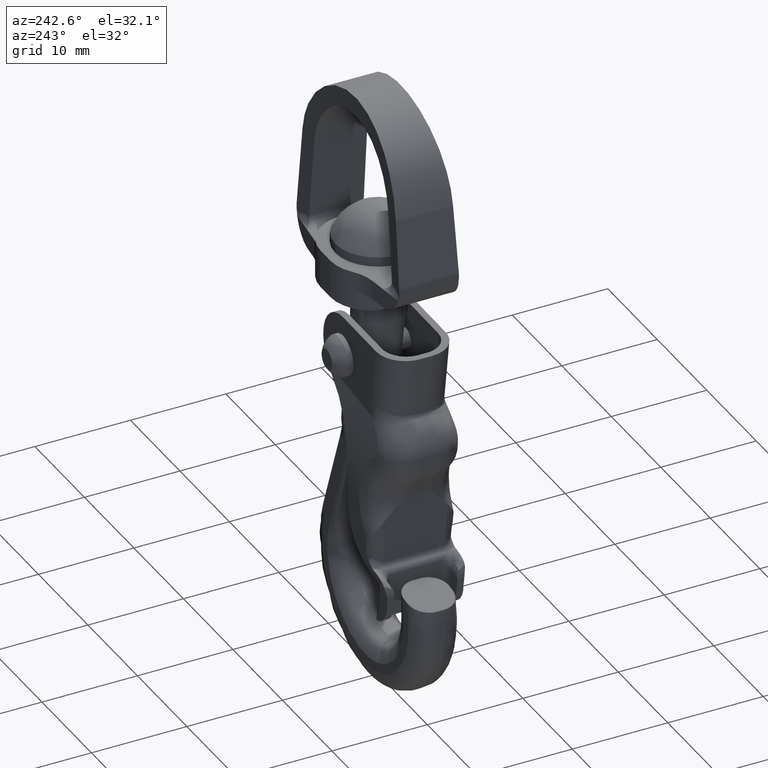
[diagram: clean part render]
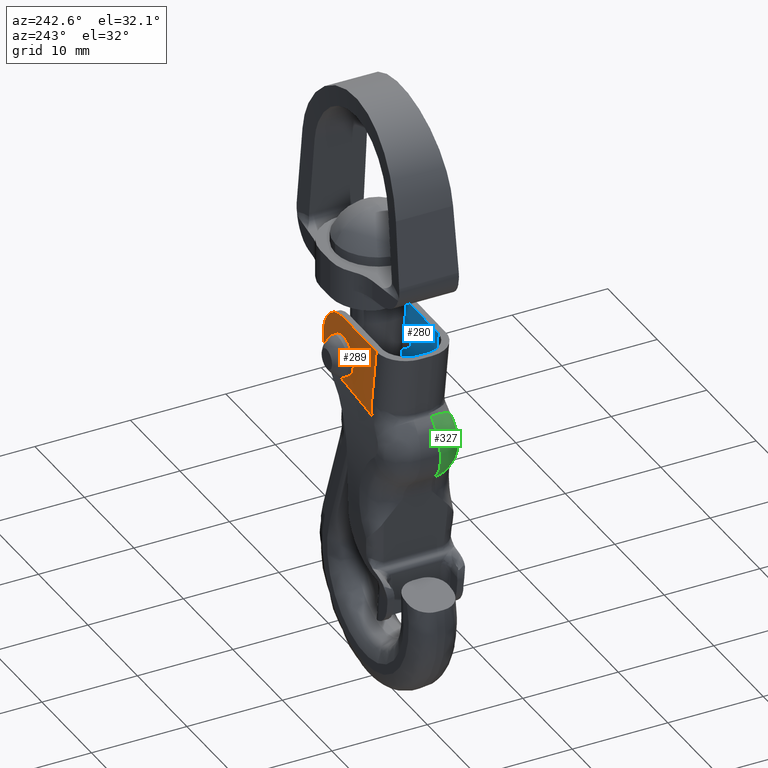
[diagram: same view with three faces highlighted in distinct colors, each labeled with its STEP entity id]
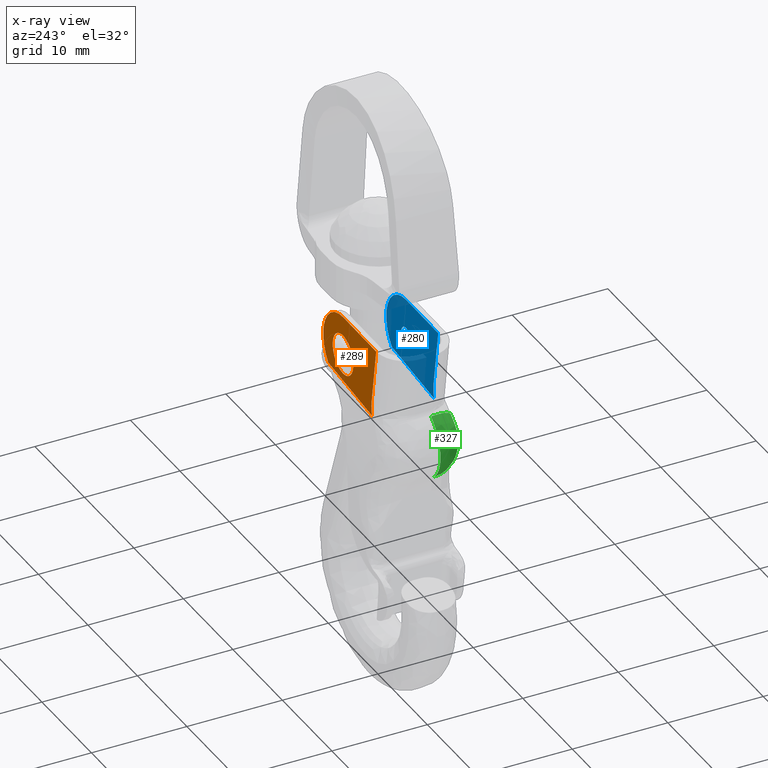
[diagram: x-ray of the same camera — body ghosted, the three highlighted faces saturated]
A machine part, auxiliary view with three faces highlighted in distinct colors.
The next image is the same camera in x-ray (body ghosted, the three faces saturated) — at least one of them is partly hidden behind the body in this view.
Their STEP definitions:

[orange] entity #289 — the highlighted planar face has unit normal (-0, 1, 0).
#289=ADVANCED_FACE('',(#1757,#1758),#1756,.T.);
#1756=PLANE('',#4382);
#1757=FACE_OUTER_BOUND('',#4383,.T.);
#1758=FACE_BOUND('',#4384,.T.);
#4379=CARTESIAN_POINT('',(-7.32479059983E+00,3.65000000000E+00,-3.59659012756E+00));
#4380=DIRECTION('',(-0.00000000000E+00,1.00000000000E+00,2.45964074850E-13));
#4381=DIRECTION('',(0.00000000000E+00,-2.45964074850E-13,1.00000000000E+00));
#4382=AXIS2_PLACEMENT_3D('',#4379,#4380,#4381);
#4383=EDGE_LOOP('',(#6299,#6300,#6301,#6302,#6303));
#4384=EDGE_LOOP('',(#6304,#6305,#6306));
#6299=ORIENTED_EDGE('',*,*,#7071,.F.);
#6300=ORIENTED_EDGE('',*,*,#7072,.T.);
#6301=ORIENTED_EDGE('',*,*,#7073,.T.);
#6302=ORIENTED_EDGE('',*,*,#7074,.F.);
#6303=ORIENTED_EDGE('',*,*,#7010,.T.);
#6304=ORIENTED_EDGE('',*,*,#7075,.F.);
#6305=ORIENTED_EDGE('',*,*,#7076,.F.);
#6306=ORIENTED_EDGE('',*,*,#7077,.F.);
#7010=EDGE_CURVE('',#9742,#9735,#9743,.T.);
#7071=EDGE_CURVE('',#10146,#9735,#10147,.T.);
#7072=EDGE_CURVE('',#10146,#10153,#10154,.T.);
#7073=EDGE_CURVE('',#10153,#10160,#10161,.T.);
#7074=EDGE_CURVE('',#9742,#10160,#10167,.T.);
#7075=EDGE_CURVE('',#10173,#10174,#10175,.T.);
#7076=EDGE_CURVE('',#10181,#10173,#10182,.T.);
#7077=EDGE_CURVE('',#10174,#10181,#10188,.T.);
#9735=VERTEX_POINT('',#13096);
#9742=VERTEX_POINT('',#13103);
#9743=CIRCLE('',#13107,4.00000000000E+00);
#10146=VERTEX_POINT('',#13465);
#10147=LINE('',#13466,#13467);
#10153=VERTEX_POINT('',#13469);
#10154=(BOUNDED_CURVE() B_SPLINE_CURVE(2,(#13470,#13471,#13472),.UNSPECIFIED.,.F.,.F.) B_SPLINE_CURVE_WITH_KNOTS((3,3),(0.00000000000E+00,1.00000000000E+00),.UNSPECIFIED.) CURVE() GEOMETRIC_REPRESENTATION_ITEM() RATIONAL_B_SPLINE_CURVE((1.00000000000E+00,1.00000000000E+00,1.00000000000E+00)) REPRESENTATION_ITEM('') );
#10160=VERTEX_POINT('',#13473);
#10161=LINE('',#13474,#13475);
#10167=LINE('',#13477,#13478);
#10173=VERTEX_POINT('',#13480);
#10174=VERTEX_POINT('',#13481);
#10175=CIRCLE('',#13485,2.08506594620E+00);
#10181=VERTEX_POINT('',#13486);
#10182=CIRCLE('',#13490,2.08506594620E+00);
#10188=CIRCLE('',#13494,2.08506594620E+00);
#13096=CARTESIAN_POINT('',(2.72282086688E+00,3.65000000000E+00,-2.83971034719E+00));
#13103=CARTESIAN_POINT('',(3.98721437456E-01,3.65000000000E+00,4.08056628611E+00));
#13104=CARTESIAN_POINT('',(9.72491310870E-03,3.65000000000E+00,9.95260069793E-02));
#13105=DIRECTION('',(0.00000000000E+00,1.00000000000E+00,2.45964074850E-13));
#13106=DIRECTION('',(-0.00000000000E+00,2.45964074850E-13,-1.00000000000E+00));
#13107=AXIS2_PLACEMENT_3D('',#13104,#13105,#13106);
#13465=CARTESIAN_POINT('',(-6.18553665017E+00,3.65000000000E+00,-2.83971034719E+00));
#13466=CARTESIAN_POINT('',(-6.18553665017E+00,3.65000000000E+00,-2.83971034719E+00));
#13467=VECTOR('',#13468,8.90835751704E+00);
#13468=DIRECTION('',(1.00000000000E+00,0.00000000000E+00,0.00000000000E+00));
#13469=CARTESIAN_POINT('',(-5.95439477423E+00,3.65000000000E+00,-1.36964851041E+00));
#13470=CARTESIAN_POINT('',(-6.18553665017E+00,3.65000000000E+00,-2.83971034719E+00));
#13471=CARTESIAN_POINT('',(-5.91907012449E+00,3.65000000000E+00,-2.12840515811E+00));
#13472=CARTESIAN_POINT('',(-5.95439477423E+00,3.65000000000E+00,-1.36964851041E+00));
#13473=CARTESIAN_POINT('',(-6.23832732700E+00,3.65000000000E+00,4.72908745652E+00));
#13474=CARTESIAN_POINT('',(-5.95439477423E+00,3.65000000000E+00,-1.36964851041E+00));
#13475=VECTOR('',#13476,6.10534176675E+00);
#13476=DIRECTION('',(-4.65055952010E-02,-2.45635595673E-13,9.98918029477E-01));
#13477=CARTESIAN_POINT('',(3.98721437456E-01,3.65000000000E+00,4.08056628611E+00));
#13478=VECTOR('',#13479,6.66865773677E+00);
#13479=DIRECTION('',(-9.95260069782E-01,-2.39070638544E-14,9.72491310867E-02));
#13480=CARTESIAN_POINT('',(-2.08506594620E+00,3.65000000000E+00,1.25526639351E-11));
#13481=CARTESIAN_POINT('',(1.70530256582E-13,3.65000000000E+00,2.08506594620E+00));
#13482=CARTESIAN_POINT('',(1.70530256582E-13,3.65000000000E+00,-6.14910187124E-14));
#13483=DIRECTION('',(1.12103877146E-44,1.00000000000E+00,2.45964074850E-13));
#13484=DIRECTION('',(-1.22460635382E-16,-2.45964074850E-13,1.00000000000E+00));
#13485=AXIS2_PLACEMENT_3D('',#13482,#13483,#13484);
#13486=CARTESIAN_POINT('',(2.08506593497E+00,3.65000000000E+00,-2.16387609521E-04));
#13487=CARTESIAN_POINT('',(1.70530256582E-13,3.65000000000E+00,-6.14910187124E-14));
#13488=DIRECTION('',(1.12103877146E-44,1.00000000000E+00,2.45964074850E-13));
#13489=DIRECTION('',(-1.22460635382E-16,-2.45964074850E-13,1.00000000000E+00));
#13490=AXIS2_PLACEMENT_3D('',#13487,#13488,#13489);
#13491=CARTESIAN_POINT('',(1.70530256582E-13,3.65000000000E+00,-6.14910187124E-14));
#13492=DIRECTION('',(1.12103877146E-44,1.00000000000E+00,2.45964074850E-13));
#13493=DIRECTION('',(-1.22460635382E-16,-2.45964074850E-13,1.00000000000E+00));
#13494=AXIS2_PLACEMENT_3D('',#13491,#13492,#13493);

[blue] entity #280 — the highlighted planar face has unit normal (0, 1, -0).
#280=ADVANCED_FACE('',(#1665,#1666),#1664,.T.);
#1664=PLANE('',#4215);
#1665=FACE_OUTER_BOUND('',#4216,.T.);
#1666=FACE_BOUND('',#4217,.T.);
#4212=CARTESIAN_POINT('',(-7.10266216644E+00,-2.95000000000E+00,-3.72765579224E+00));
#4213=DIRECTION('',(0.00000000000E+00,1.00000000000E+00,-2.34912969603E-13));
#4214=DIRECTION('',(0.00000000000E+00,2.34912969603E-13,1.00000000000E+00));
#4215=AXIS2_PLACEMENT_3D('',#4212,#4213,#4214);
#4216=EDGE_LOOP('',(#6252,#6253,#6254,#6255,#6256));
#4217=EDGE_LOOP('',(#6257,#6258));
#6252=ORIENTED_EDGE('',*,*,#7034,.F.);
#6253=ORIENTED_EDGE('',*,*,#7001,.T.);
#6254=ORIENTED_EDGE('',*,*,#7035,.T.);
#6255=ORIENTED_EDGE('',*,*,#7036,.F.);
#6256=ORIENTED_EDGE('',*,*,#7037,.T.);
#6257=ORIENTED_EDGE('',*,*,#7038,.F.);
#6258=ORIENTED_EDGE('',*,*,#7039,.F.);
#7001=EDGE_CURVE('',#9680,#9681,#9682,.T.);
#7034=EDGE_CURVE('',#9680,#9898,#9899,.T.);
#7035=EDGE_CURVE('',#9681,#9905,#9906,.T.);
#7036=EDGE_CURVE('',#9912,#9905,#9913,.T.);
#7037=EDGE_CURVE('',#9912,#9898,#9919,.T.);
#7038=EDGE_CURVE('',#9925,#9926,#9927,.T.);
#7039=EDGE_CURVE('',#9926,#9925,#9933,.T.);
#9680=VERTEX_POINT('',#13042);
#9681=VERTEX_POINT('',#13043);
#9682=CIRCLE('',#13047,3.90000000000E+00);
#9898=VERTEX_POINT('',#13213);
#9899=LINE('',#13214,#13215);
#9905=VERTEX_POINT('',#13217);
#9906=LINE('',#13218,#13219);
#9912=VERTEX_POINT('',#13221);
#9913=LINE('',#13222,#13223);
#9919=CIRCLE('',#13228,4.00000000000E+00);
#9925=VERTEX_POINT('',#13229);
#9926=VERTEX_POINT('',#13230);
#9927=CIRCLE('',#13234,1.00000000000E+00);
#9933=CIRCLE('',#13238,1.00000000000E+00);
#13042=CARTESIAN_POINT('',(-6.01767318163E+00,-2.95000000000E+00,-2.96064759024E+00));
#13043=CARTESIAN_POINT('',(-5.75461116834E+00,-2.95000000000E+00,-1.36034739137E+00));
#13044=CARTESIAN_POINT('',(-9.65039148330E+00,-2.95000000000E+00,-1.54171921265E+00));
#13045=DIRECTION('',(0.00000000000E+00,-1.00000000000E+00,2.34912969603E-13));
#13046=DIRECTION('',(-0.00000000000E+00,-2.34912969603E-13,-1.00000000000E+00));
#13047=AXIS2_PLACEMENT_3D('',#13044,#13045,#13046);
#13213=CARTESIAN_POINT('',(2.58563980978E+00,-2.95000000000E+00,-2.96064759024E+00));
#13214=CARTESIAN_POINT('',(-6.01767318163E+00,-2.95000000000E+00,-2.96064759024E+00));
#13215=VECTOR('',#13216,8.60331299141E+00);
#13216=DIRECTION('',(1.00000000000E+00,0.00000000000E+00,0.00000000000E+00));
#13217=CARTESIAN_POINT('',(-6.03719573284E+00,-2.95000000000E+00,4.70943442978E+00));
#13218=CARTESIAN_POINT('',(-5.75461116834E+00,-2.95000000000E+00,-1.36034739137E+00));
#13219=VECTOR('',#13220,6.07635625951E+00);
#13220=DIRECTION('',(-4.65055952010E-02,2.34602169909E-13,9.98918029477E-01));
#13221=CARTESIAN_POINT('',(3.98721437456E-01,-2.95000000000E+00,4.08056628611E+00));
#13222=CARTESIAN_POINT('',(3.98721437456E-01,-2.95000000000E+00,4.08056628611E+00));
#13223=VECTOR('',#13224,6.46656825256E+00);
#13224=DIRECTION('',(-9.95260069782E-01,2.27999785840E-14,9.72491310867E-02));
#13225=CARTESIAN_POINT('',(9.72491310870E-03,-2.95000000000E+00,9.95260069793E-02));
#13226=DIRECTION('',(0.00000000000E+00,1.00000000000E+00,-2.34912969603E-13));
#13227=DIRECTION('',(-0.00000000000E+00,-2.34912969603E-13,-1.00000000000E+00));
#13228=AXIS2_PLACEMENT_3D('',#13225,#13226,#13227);
#13229=CARTESIAN_POINT('',(1.11022302463E-16,-2.95000000000E+00,-1.00000000000E+00));
#13230=CARTESIAN_POINT('',(0.00000000000E+00,-2.95000000000E+00,1.00000000000E+00));
#13231=CARTESIAN_POINT('',(0.00000000000E+00,-2.95000000000E+00,-4.44089209850E-16));
#13232=DIRECTION('',(0.00000000000E+00,1.00000000000E+00,-2.34912969603E-13));
#13233=DIRECTION('',(-1.22460635382E-16,2.34912969603E-13,1.00000000000E+00));
#13234=AXIS2_PLACEMENT_3D('',#13231,#13232,#13233);
#13235=CARTESIAN_POINT('',(0.00000000000E+00,-2.95000000000E+00,-4.44089209850E-16));
#13236=DIRECTION('',(0.00000000000E+00,1.00000000000E+00,-2.34912969603E-13));
#13237=DIRECTION('',(-1.22460635382E-16,2.34912969603E-13,1.00000000000E+00));
#13238=AXIS2_PLACEMENT_3D('',#13235,#13236,#13237);

[green] entity #327 — the highlighted face is a freeform B-spline surface patch.
#327=ADVANCED_FACE('',(#2139),#2138,.T.);
#2138=( BOUNDED_SURFACE() B_SPLINE_SURFACE( 3,2,((#5076,#5077,#5078),(#5079,#5080,#5081),(#5082,#5083,#5084),(#5085,#5086,#5087),(#5088,#5089,#5090),(#5091,#5092,#5093),(#5094,#5095,#5096),(#5097,#5098,#5099),(#5100,#5101,#5102),(#5103,#5104,#5105),(#5106,#5107,#5108),(#5109,#5110,#5111),(#5112,#5113,#5114),(#5115,#5116,#5117),(#5118,#5119,#5120),(#5121,#5122,#5123),(#5124,#5125,#5126),(#5127,#5128,#5129)), .UNSPECIFIED.,.F.,.F.,.F.) B_SPLINE_SURFACE_WITH_KNOTS((4,2,2,2,2,2,2,2,4),(3,3),(-4.66206934169E-18,2.82059980083E-04,5.64119960166E-04,8.46179940249E-04,1.12823992033E-03,1.41029990041E-03,1.69235988050E-03,1.97441986058E-03,2.25647984066E-03),(0.00000000000E+00,1.00000000000E+00), .UNSPECIFIED. ) GEOMETRIC_REPRESENTATION_ITEM() RATIONAL_B_SPLINE_SURFACE(((1.00000000000E+00,7.50517697357E-01,1.00000000000E+00),(1.00000000000E+00,7.48297711454E-01,1.00000000000E+00),(1.00000000000E+00,7.45753974624E-01,1.00000000000E+00),(1.00000000000E+00,7.40098440701E-01,1.00000000000E+00),(1.00000000000E+00,7.36949825697E-01,1.00000000000E+00),(1.00000000000E+00,7.30420238597E-01,1.00000000000E+00),(1.00000000000E+00,7.27017710484E-01,1.00000000000E+00),(1.00000000000E+00,7.19986598794E-01,1.00000000000E+00),(1.00000000000E+00,7.16468459645E-01,1.00000000000E+00),(1.00000000000E+00,7.09523668238E-01,1.00000000000E+00),(1.00000000000E+00,7.06049663051E-01,1.00000000000E+00),(1.00000000000E+00,6.99482599044E-01,1.00000000000E+00),(1.00000000000E+00,6.96364374894E-01,1.00000000000E+00),(1.00000000000E+00,6.90447045041E-01,1.00000000000E+00),(1.00000000000E+00,6.87718508856E-01,1.00000000000E+00),(1.00000000000E+00,6.82775331000E-01,1.00000000000E+00),(1.00000000000E+00,6.80531123554E-01,1.00000000000E+00),(1.00000000000E+00,6.78548252458E-01,1.00000000000E+00))) REPRESENTATION_ITEM('') SURFACE() );
#2139=FACE_OUTER_BOUND('',#5130,.T.);
#5076=CARTESIAN_POINT('',(-9.28053309384E+00,-9.00440507845E-01,-2.13602954552E+00));
#5077=CARTESIAN_POINT('',(-9.10246692346E+00,-3.53367931532E+00,-2.02521325417E+00));
#5078=CARTESIAN_POINT('',(-7.69542571045E+00,-3.86692524004E+00,-4.23589563914E+00));
#5079=CARTESIAN_POINT('',(-9.55224758988E+00,-9.08013141053E-01,-2.30512619476E+00));
#5080=CARTESIAN_POINT('',(-9.36179972972E+00,-3.55724379286E+00,-2.16802630625E+00));
#5081=CARTESIAN_POINT('',(-7.77614899195E+00,-3.87489969196E+00,-4.28879645228E+00));
#5082=CARTESIAN_POINT('',(-9.79975485392E+00,-9.16718289804E-01,-2.50102871948E+00));
#5083=CARTESIAN_POINT('',(-9.60255989917E+00,-3.58447819238E+00,-2.33515345421E+00));
#5084=CARTESIAN_POINT('',(-7.84967607599E+00,-3.88406625189E+00,-4.35007994867E+00));
#5085=CARTESIAN_POINT('',(-1.02484031243E+01,-9.36136710754E-01,-2.94399570709E+00));
#5086=CARTESIAN_POINT('',(-1.00506087161E+01,-3.64576402284E+00,-2.71966315286E+00));
#5087=CARTESIAN_POINT('',(-7.98296047143E+00,-3.90451445565E+00,-4.48865527782E+00));
#5088=CARTESIAN_POINT('',(-1.04508908325E+01,-9.46983378397E-01,-3.19422374741E+00));
#5089=CARTESIAN_POINT('',(-1.02595204699E+01,-3.68034095519E+00,-2.94057029176E+00));
#5090=CARTESIAN_POINT('',(-8.04311550503E+00,-3.91593633442E+00,-4.56693522574E+00));
#5091=CARTESIAN_POINT('',(-1.07902509298E+01,-9.69606116525E-01,-3.72464196003E+00));
#5092=CARTESIAN_POINT('',(-1.06236982013E+01,-3.75317569186E+00,-3.41845696542E+00));
#5093=CARTESIAN_POINT('',(-8.14393258265E+00,-3.93975878397E+00,-4.73286830539E+00));
#5094=CARTESIAN_POINT('',(-1.09296784972E+01,-9.81454964840E-01,-4.00641135706E+00));
#5095=CARTESIAN_POINT('',(-1.07811611911E+01,-3.79173219285E+00,-3.67731564219E+00));
#5096=CARTESIAN_POINT('',(-8.18535371730E+00,-3.95223599030E+00,-4.82101547515E+00));
#5097=CARTESIAN_POINT('',(-1.11462992235E+01,-1.00613347723E+00,-4.60407721771E+00));
#5098=CARTESIAN_POINT('',(-1.10433281369E+01,-3.87282862172E+00,-4.23851789574E+00));
#5099=CARTESIAN_POINT('',(-8.24970737930E+00,-3.97822323436E+00,-5.00798594021E+00));
#5100=CARTESIAN_POINT('',(-1.12199114839E+01,-1.01857686749E+00,-4.91067162375E+00));
#5101=CARTESIAN_POINT('',(-1.11432228229E+01,-3.91413596585E+00,-4.53257717095E+00));
#5102=CARTESIAN_POINT('',(-8.27157610997E+00,-3.99132651206E+00,-5.10389922634E+00));
#5103=CARTESIAN_POINT('',(-1.12989860432E+01,-1.04338725766E+00,-5.53372337065E+00));
#5104=CARTESIAN_POINT('',(-1.12784090272E+01,-3.99721319545E+00,-5.14321927412E+00));
#5105=CARTESIAN_POINT('',(-8.29506757214E+00,-4.01745262713E+00,-5.29881126796E+00));
#5106=CARTESIAN_POINT('',(-1.13039426021E+01,-1.05592781038E+00,-5.85472309385E+00));
#5107=CARTESIAN_POINT('',(-1.13129471115E+01,-4.03956027774E+00,-5.46454687209E+00));
#5108=CARTESIAN_POINT('',(-8.29654006556E+00,-4.03065822037E+00,-5.39923103469E+00));
#5109=CARTESIAN_POINT('',(-1.12436970859E+01,-1.07993038412E+00,-6.48131210346E+00));
#5110=CARTESIAN_POINT('',(-1.13086785000E+01,-4.12114951758E+00,-6.10477485350E+00));
#5111=CARTESIAN_POINT('',(-8.27864233571E+00,-4.05593367908E+00,-5.59524965403E+00));
#5112=CARTESIAN_POINT('',(-1.11795716102E+01,-1.09147932744E+00,-6.78894445898E+00));
#5113=CARTESIAN_POINT('',(-1.12704839845E+01,-4.16062920589E+00,-6.42535944858E+00));
#5114=CARTESIAN_POINT('',(-8.25959194606E+00,-4.06809507691E+00,-5.69148764943E+00));
#5115=CARTESIAN_POINT('',(-1.09814195749E+01,-1.11371132104E+00,-7.39254179371E+00));
#5116=CARTESIAN_POINT('',(-1.11173598713E+01,-4.23692978493E+00,-7.06584618273E+00));
#5117=CARTESIAN_POINT('',(-8.20072494467E+00,-4.09150605950E+00,-5.88031367783E+00));
#5118=CARTESIAN_POINT('',(-1.08491948778E+01,-1.12413129926E+00,-7.68142128187E+00));
#5119=CARTESIAN_POINT('',(-1.10031035778E+01,-4.27276944110E+00,-7.37781051016E+00));
#5120=CARTESIAN_POINT('',(-8.16144364588E+00,-4.10247862203E+00,-5.97068513131E+00));
#5121=CARTESIAN_POINT('',(-1.05257066308E+01,-1.14329362909E+00,-8.22182196258E+00));
#5122=CARTESIAN_POINT('',(-1.07044167023E+01,-4.33877768777E+00,-7.97011578042E+00));
#5123=CARTESIAN_POINT('',(-8.06534177800E+00,-4.12265715257E+00,-6.13974107197E+00));
#5124=CARTESIAN_POINT('',(-1.03324665821E+01,-1.15214874869E+00,-8.47652882460E+00));
#5125=CARTESIAN_POINT('',(-1.05178565332E+01,-4.36924641823E+00,-8.25329933459E+00));
#5126=CARTESIAN_POINT('',(-8.00793374250E+00,-4.13198190673E+00,-6.21942247179E+00));
#5127=CARTESIAN_POINT('',(-1.01107769039E+01,-1.16009369189E+00,-8.70846923124E+00));
#5128=CARTESIAN_POINT('',(-1.02971698381E+01,-4.39649134031E+00,-8.51345765789E+00));
#5129=CARTESIAN_POINT('',(-7.94207448427E+00,-4.14034814309E+00,-6.29198109592E+00));
#5130=EDGE_LOOP('',(#6502,#6503,#6504,#6505));
#6502=ORIENTED_EDGE('',*,*,#7148,.T.);
#6503=ORIENTED_EDGE('',*,*,#7062,.F.);
#6504=ORIENTED_EDGE('',*,*,#7149,.F.);
#6505=ORIENTED_EDGE('',*,*,#6945,.F.);
#6945=EDGE_CURVE('',#9293,#9300,#9301,.T.);
#7062=EDGE_CURVE('',#10078,#10085,#10086,.T.);
#7148=EDGE_CURVE('',#9293,#10085,#10644,.T.);
#7149=EDGE_CURVE('',#9300,#10078,#10650,.T.);
#9293=VERTEX_POINT('',#12566);
#9300=VERTEX_POINT('',#12573);
#9301=(BOUNDED_CURVE() B_SPLINE_CURVE(3,(#12574,#12575,#12576,#12577,#12578,#12579,#12580,#12581,#12582,#12583,#12584,#12585,#12586,#12587),.UNSPECIFIED.,.F.,.F.) B_SPLINE_CURVE_WITH_KNOTS((4,2,2,2,2,2,4),(0.00000000000E+00,2.93566528303E-04,5.87133056607E-04,1.17426611321E-03,1.46783264152E-03,1.76139916982E-03,2.34853222643E-03),.UNSPECIFIED.) CURVE() GEOMETRIC_REPRESENTATION_ITEM() RATIONAL_B_SPLINE_CURVE((1.00000000000E+00,1.00000000000E+00,1.00000000000E+00,1.00000000000E+00,1.00000000000E+00,1.00000000000E+00,1.00000000000E+00,1.00000000000E+00,1.00000000000E+00,1.00000000000E+00,1.00000000000E+00,1.00000000000E+00,1.00000000000E+00,1.00000000000E+00)) REPRESENTATION_ITEM('') );
#10078=VERTEX_POINT('',#13408);
#10085=VERTEX_POINT('',#13412);
#10086=(BOUNDED_CURVE() B_SPLINE_CURVE(3,(#13413,#13414,#13415,#13416,#13417,#13418,#13419,#13420,#13421,#13422,#13423,#13424,#13425,#13426,#13427,#13428,#13429,#13430),.UNSPECIFIED.,.F.,.F.) B_SPLINE_CURVE_WITH_KNOTS((4,2,2,2,2,2,2,2,4),(2.45326946669E-18,9.56537407108E-04,1.91307481422E-03,2.86961222132E-03,3.82614962843E-03,4.78268703554E-03,5.73922444265E-03,6.69576184975E-03,7.65229925686E-03),.UNSPECIFIED.) CURVE() GEOMETRIC_REPRESENTATION_ITEM() RATIONAL_B_SPLINE_CURVE((1.00000000000E+00,1.00000000000E+00,1.00000000000E+00,1.00000000000E+00,1.00000000000E+00,1.00000000000E+00,1.00000000000E+00,1.00000000000E+00,1.00000000000E+00,1.00000000000E+00,1.00000000000E+00,1.00000000000E+00,1.00000000000E+00,1.00000000000E+00,1.00000000000E+00,1.00000000000E+00,1.00000000000E+00,1.00000000000E+00)) REPRESENTATION_ITEM('') );
#10644=CIRCLE('',#13947,3.00000000000E+00);
#10650=CIRCLE('',#13951,3.00000000000E+00);
#12566=CARTESIAN_POINT('',(-7.69542571045E+00,-3.86692524004E+00,-4.23589563914E+00));
#12573=CARTESIAN_POINT('',(-7.94207448427E+00,-4.14034814309E+00,-6.29198109592E+00));
#12574=CARTESIAN_POINT('',(-7.69542571045E+00,-3.86692524004E+00,-4.23589563914E+00));
#12575=CARTESIAN_POINT('',(-7.77821043430E+00,-3.87510333466E+00,-4.29014737455E+00));
#12576=CARTESIAN_POINT('',(-7.85291810521E+00,-3.88448206392E+00,-4.35286539919E+00));
#12577=CARTESIAN_POINT('',(-7.98744219613E+00,-3.90528841728E+00,-4.49393470898E+00));
#12578=CARTESIAN_POINT('',(-8.04755677908E+00,-3.91684373819E+00,-4.57319036741E+00));
#12579=CARTESIAN_POINT('',(-8.19770319030E+00,-3.95276655558E+00,-4.82361160238E+00));
#12580=CARTESIAN_POINT('',(-8.26131628666E+00,-3.97918267897E+00,-5.01318197971E+00));
#12581=CARTESIAN_POINT('',(-8.29518952508E+00,-4.01796893820E+00,-5.30272496213E+00));
#12582=CARTESIAN_POINT('',(-8.29640890651E+00,-4.03099727691E+00,-5.40184069935E+00));
#12583=CARTESIAN_POINT('',(-8.27848977566E+00,-4.05599282516E+00,-5.59572848600E+00));
#12584=CARTESIAN_POINT('',(-8.25962871506E+00,-4.06804651834E+00,-5.69110954384E+00));
#12585=CARTESIAN_POINT('',(-8.17218718396E+00,-4.10292263260E+00,-5.97236948055E+00));
#12586=CARTESIAN_POINT('',(-8.07501853831E+00,-4.12345998881E+00,-6.14551365387E+00));
#12587=CARTESIAN_POINT('',(-7.94207448427E+00,-4.14034814309E+00,-6.29198109592E+00));
#13408=CARTESIAN_POINT('',(-1.01107769039E+01,-1.16009369189E+00,-8.70846923124E+00));
#13412=CARTESIAN_POINT('',(-9.28053309384E+00,-9.00440507845E-01,-2.13602954552E+00));
#13413=CARTESIAN_POINT('',(-1.01107769039E+01,-1.16009369189E+00,-8.70846923124E+00));
#13414=CARTESIAN_POINT('',(-1.03311990970E+01,-1.15219417257E+00,-8.47785491705E+00));
#13415=CARTESIAN_POINT('',(-1.05247498549E+01,-1.14333913326E+00,-8.22312653662E+00));
#13416=CARTESIAN_POINT('',(-1.08480542158E+01,-1.12420996781E+00,-7.68361866551E+00));
#13417=CARTESIAN_POINT('',(-1.09803916498E+01,-1.11380243020E+00,-7.39504794173E+00));
#13418=CARTESIAN_POINT('',(-1.11789711182E+01,-1.09157072322E+00,-6.79139357545E+00));
#13419=CARTESIAN_POINT('',(-1.12433398450E+01,-1.08001588907E+00,-6.48356886570E+00));
#13420=CARTESIAN_POINT('',(-1.13039381683E+01,-1.05598606225E+00,-5.85621926118E+00));
#13421=CARTESIAN_POINT('',(-1.12990727606E+01,-1.04342139536E+00,-5.53458443619E+00));
#13422=CARTESIAN_POINT('',(-1.12199011811E+01,-1.01856671225E+00,-4.91041282248E+00));
#13423=CARTESIAN_POINT('',(-1.11461033792E+01,-1.00609930944E+00,-4.60323463364E+00));
#13424=CARTESIAN_POINT('',(-1.09289309940E+01,-9.81381713418E-01,-4.00465252123E+00));
#13425=CARTESIAN_POINT('',(-1.07891912441E+01,-9.69522391874E-01,-3.72265881293E+00));
#13426=CARTESIAN_POINT('',(-1.04493669707E+01,-9.46894976092E-01,-3.19217131782E+00));
#13427=CARTESIAN_POINT('',(-1.02467372772E+01,-9.36055616920E-01,-2.94213386068E+00));
#13428=CARTESIAN_POINT('',(-9.79842968001E+00,-9.16669986301E-01,-2.49993887415E+00));
#13429=CARTESIAN_POINT('',(-9.55138771822E+00,-9.07989174693E-01,-2.30459106903E+00));
#13430=CARTESIAN_POINT('',(-9.28053309384E+00,-9.00440507845E-01,-2.13602954552E+00));
#13944=CARTESIAN_POINT('',(-7.69542571045E+00,-9.00440507845E-01,-4.68307382922E+00));
#13945=DIRECTION('',(-8.46334502183E-01,-7.93967518093E-02,-5.26701116589E-01));
#13946=DIRECTION('',(5.28369127796E-01,-0.00000000000E+00,-8.49014761233E-01));
#13947=AXIS2_PLACEMENT_3D('',#13944,#13945,#13946);
#13948=CARTESIAN_POINT('',(-7.94207448427E+00,-1.16009369189E+00,-6.63561375752E+00));
#13949=DIRECTION('',(6.88564004802E-01,-8.30646707297E-02,-7.20402576181E-01));
#13950=DIRECTION('',(7.22900806558E-01,-0.00000000000E+00,6.90951824571E-01));
#13951=AXIS2_PLACEMENT_3D('',#13948,#13949,#13950);